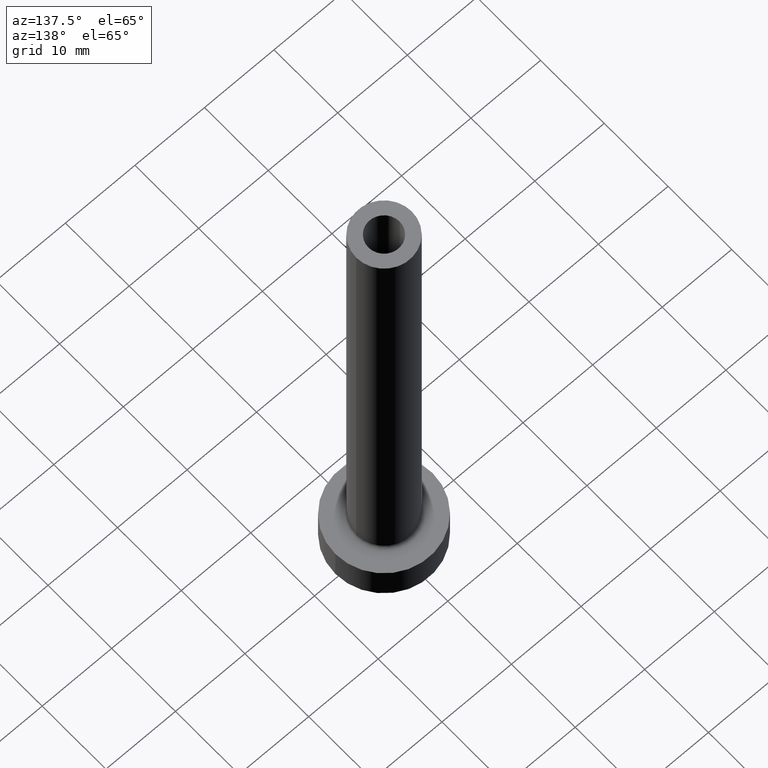
[diagram: clean part render]
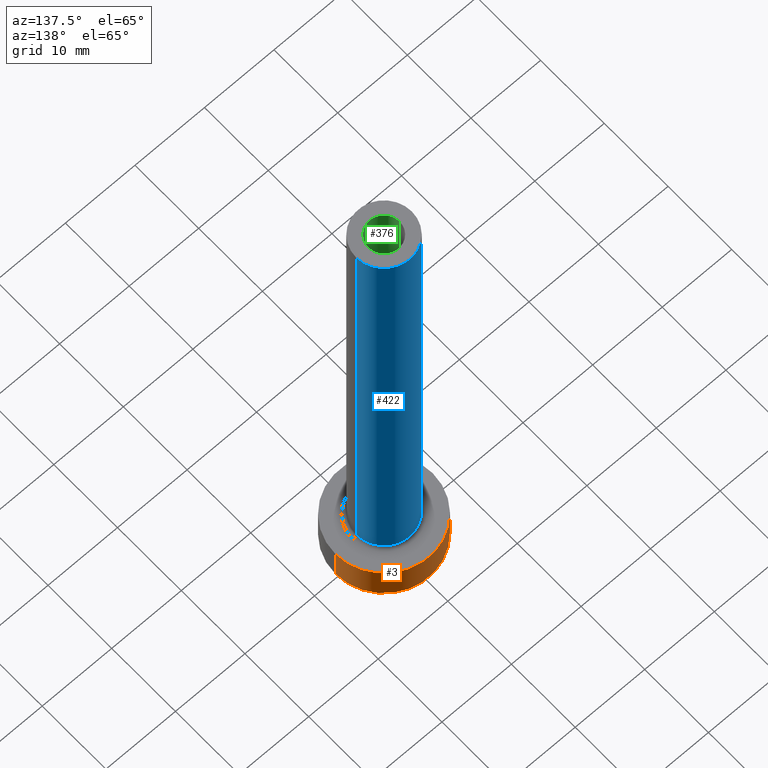
[diagram: same view with three faces highlighted in distinct colors, each labeled with its STEP entity id]
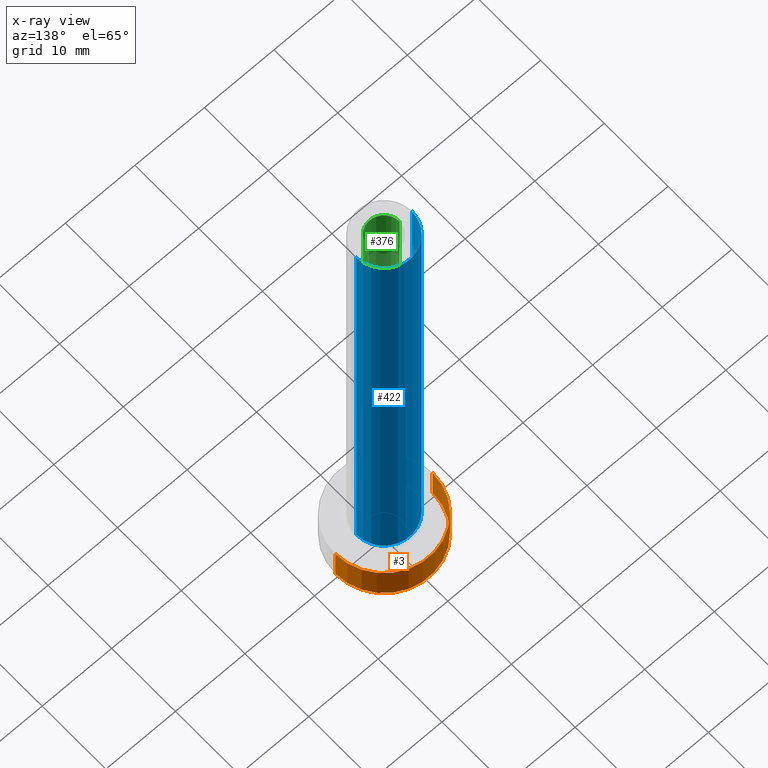
[diagram: x-ray of the same camera — body ghosted, the three highlighted faces saturated]
A machine part, auxiliary view with three faces highlighted in distinct colors.
The next image is the same camera in x-ray (body ghosted, the three faces saturated) — at least one of them is partly hidden behind the body in this view.
Their STEP definitions:

[orange] entity #3 — the highlighted cylindrical surface (partial cylindrical patch) has radius 7 mm, axis along (-0, -0, -1).
#3 = ADVANCED_FACE ( 'NONE', ( #166 ), #420, .T. ) ;
#22 = VERTEX_POINT ( 'NONE', #377 ) ;
#27 = DIRECTION ( 'NONE',  ( -1.000000000000000000, 0.000000000000000000, 0.000000000000000000 ) ) ;
#54 = ORIENTED_EDGE ( 'NONE', *, *, #195, .F. ) ;
#59 = CARTESIAN_POINT ( 'NONE',  ( 0.000000000000000000, 0.000000000000000000, 5.000000000000000000 ) ) ;
#61 = VECTOR ( 'NONE', #410, 1000.000000000000000 ) ;
#62 = VECTOR ( 'NONE', #331, 1000.000000000000000 ) ;
#67 = DIRECTION ( 'NONE',  ( 1.000000000000000000, 0.000000000000000000, 0.000000000000000000 ) ) ;
#92 = CARTESIAN_POINT ( 'NONE',  ( 7.000000000000000000, 8.572527594031473190E-16, 5.000000000000000000 ) ) ;
#98 = EDGE_CURVE ( 'NONE', #402, #225, #196, .T. ) ;
#102 = LINE ( 'NONE', #254, #62 ) ;
#130 = AXIS2_PLACEMENT_3D ( 'NONE', #59, #133, #200 ) ;
#133 = DIRECTION ( 'NONE',  ( 0.000000000000000000, 0.000000000000000000, 1.000000000000000000 ) ) ;
#147 = CIRCLE ( 'NONE', #130, 7.000000000000000000 ) ;
#166 = FACE_OUTER_BOUND ( 'NONE', #193, .T. ) ;
#193 = EDGE_LOOP ( 'NONE', ( #417, #332, #290, #54 ) ) ;
#195 = EDGE_CURVE ( 'NONE', #22, #225, #444, .T. ) ;
#196 = CIRCLE ( 'NONE', #214, 7.000000000000000000 ) ;
#200 = DIRECTION ( 'NONE',  ( 1.000000000000000000, 0.000000000000000000, 0.000000000000000000 ) ) ;
#207 = CARTESIAN_POINT ( 'NONE',  ( 0.000000000000000000, 0.000000000000000000, 5.000000000000000000 ) ) ;
#214 = AXIS2_PLACEMENT_3D ( 'NONE', #276, #421, #67 ) ;
#225 = VERTEX_POINT ( 'NONE', #260 ) ;
#239 = AXIS2_PLACEMENT_3D ( 'NONE', #207, #350, #27 ) ;
#254 = CARTESIAN_POINT ( 'NONE',  ( 7.000000000000000000, 8.572527594031473190E-16, 5.000000000000000000 ) ) ;
#260 = CARTESIAN_POINT ( 'NONE',  ( -7.000000000000000000, 0.000000000000000000, 0.000000000000000000 ) ) ;
#276 = CARTESIAN_POINT ( 'NONE',  ( 0.000000000000000000, 0.000000000000000000, 0.000000000000000000 ) ) ;
#290 = ORIENTED_EDGE ( 'NONE', *, *, #98, .T. ) ;
#331 = DIRECTION ( 'NONE',  ( -0.000000000000000000, -0.000000000000000000, -1.000000000000000000 ) ) ;
#332 = ORIENTED_EDGE ( 'NONE', *, *, #341, .T. ) ;
#341 = EDGE_CURVE ( 'NONE', #442, #402, #102, .T. ) ;
#350 = DIRECTION ( 'NONE',  ( -0.000000000000000000, -0.000000000000000000, -1.000000000000000000 ) ) ;
#377 = CARTESIAN_POINT ( 'NONE',  ( -7.000000000000000000, 0.000000000000000000, 5.000000000000000000 ) ) ;
#378 = CARTESIAN_POINT ( 'NONE',  ( -7.000000000000000000, 0.000000000000000000, 5.000000000000000000 ) ) ;
#381 = CARTESIAN_POINT ( 'NONE',  ( 7.000000000000000000, 8.572527594031473190E-16, 0.000000000000000000 ) ) ;
#402 = VERTEX_POINT ( 'NONE', #381 ) ;
#410 = DIRECTION ( 'NONE',  ( -0.000000000000000000, -0.000000000000000000, -1.000000000000000000 ) ) ;
#413 = EDGE_CURVE ( 'NONE', #442, #22, #147, .T. ) ;
#417 = ORIENTED_EDGE ( 'NONE', *, *, #413, .F. ) ;
#420 = CYLINDRICAL_SURFACE ( 'NONE', #239, 7.000000000000000000 ) ;
#421 = DIRECTION ( 'NONE',  ( 0.000000000000000000, 0.000000000000000000, 1.000000000000000000 ) ) ;
#442 = VERTEX_POINT ( 'NONE', #92 ) ;
#444 = LINE ( 'NONE', #378, #61 ) ;

[blue] entity #422 — the highlighted cylindrical surface (partial cylindrical patch) has radius 4 mm, axis along (-0, -0, -1).
#5 = EDGE_CURVE ( 'NONE', #383, #303, #319, .T. ) ;
#26 = CYLINDRICAL_SURFACE ( 'NONE', #437, 4.000000000000000000 ) ;
#52 = AXIS2_PLACEMENT_3D ( 'NONE', #97, #339, #86 ) ;
#69 = ORIENTED_EDGE ( 'NONE', *, *, #329, .F. ) ;
#70 = EDGE_CURVE ( 'NONE', #445, #302, #261, .T. ) ;
#72 = AXIS2_PLACEMENT_3D ( 'NONE', #164, #306, #122 ) ;
#74 = VECTOR ( 'NONE', #380, 1000.000000000000000 ) ;
#78 = LINE ( 'NONE', #109, #74 ) ;
#86 = DIRECTION ( 'NONE',  ( 1.000000000000000000, 0.000000000000000000, 0.000000000000000000 ) ) ;
#97 = CARTESIAN_POINT ( 'NONE',  ( 0.000000000000000000, 0.000000000000000000, 5.500000000000005329 ) ) ;
#109 = CARTESIAN_POINT ( 'NONE',  ( 4.000000000000000000, 4.898587196589412829E-16, 75.00000000000001421 ) ) ;
#122 = DIRECTION ( 'NONE',  ( 1.000000000000000000, 0.000000000000000000, 0.000000000000000000 ) ) ;
#141 = VECTOR ( 'NONE', #396, 1000.000000000000000 ) ;
#153 = ORIENTED_EDGE ( 'NONE', *, *, #257, .T. ) ;
#164 = CARTESIAN_POINT ( 'NONE',  ( 0.000000000000000000, 0.000000000000000000, 75.00000000000001421 ) ) ;
#188 = LINE ( 'NONE', #298, #141 ) ;
#203 = DIRECTION ( 'NONE',  ( -0.000000000000000000, -0.000000000000000000, -1.000000000000000000 ) ) ;
#210 = CARTESIAN_POINT ( 'NONE',  ( 0.000000000000000000, 0.000000000000000000, 75.00000000000001421 ) ) ;
#215 = EDGE_LOOP ( 'NONE', ( #253, #153, #342, #69 ) ) ;
#253 = ORIENTED_EDGE ( 'NONE', *, *, #70, .F. ) ;
#257 = EDGE_CURVE ( 'NONE', #445, #383, #78, .T. ) ;
#261 = CIRCLE ( 'NONE', #72, 4.000000000000000000 ) ;
#298 = CARTESIAN_POINT ( 'NONE',  ( -4.000000000000000000, 0.000000000000000000, 75.00000000000001421 ) ) ;
#302 = VERTEX_POINT ( 'NONE', #428 ) ;
#303 = VERTEX_POINT ( 'NONE', #391 ) ;
#306 = DIRECTION ( 'NONE',  ( 0.000000000000000000, 0.000000000000000000, 1.000000000000000000 ) ) ;
#319 = CIRCLE ( 'NONE', #52, 4.000000000000000000 ) ;
#329 = EDGE_CURVE ( 'NONE', #302, #303, #188, .T. ) ;
#339 = DIRECTION ( 'NONE',  ( 0.000000000000000000, 0.000000000000000000, 1.000000000000000000 ) ) ;
#342 = ORIENTED_EDGE ( 'NONE', *, *, #5, .T. ) ;
#344 = FACE_OUTER_BOUND ( 'NONE', #215, .T. ) ;
#380 = DIRECTION ( 'NONE',  ( -0.000000000000000000, -0.000000000000000000, -1.000000000000000000 ) ) ;
#383 = VERTEX_POINT ( 'NONE', #435 ) ;
#385 = CARTESIAN_POINT ( 'NONE',  ( 4.000000000000000000, 4.898587196589412829E-16, 75.00000000000001421 ) ) ;
#391 = CARTESIAN_POINT ( 'NONE',  ( -4.000000000000000000, 0.000000000000000000, 5.500000000000005329 ) ) ;
#396 = DIRECTION ( 'NONE',  ( -0.000000000000000000, -0.000000000000000000, -1.000000000000000000 ) ) ;
#419 = DIRECTION ( 'NONE',  ( -1.000000000000000000, 0.000000000000000000, 0.000000000000000000 ) ) ;
#422 = ADVANCED_FACE ( 'NONE', ( #344 ), #26, .T. ) ;
#428 = CARTESIAN_POINT ( 'NONE',  ( -4.000000000000000000, 0.000000000000000000, 75.00000000000001421 ) ) ;
#435 = CARTESIAN_POINT ( 'NONE',  ( 4.000000000000000000, 4.898587196589412829E-16, 5.500000000000005329 ) ) ;
#437 = AXIS2_PLACEMENT_3D ( 'NONE', #210, #203, #419 ) ;
#445 = VERTEX_POINT ( 'NONE', #385 ) ;

[green] entity #376 — the highlighted cylindrical surface (edge-blend (fillet) strip) has radius 2.25 mm, axis along (0, 0, -1).
#1 = DIRECTION ( 'NONE',  ( -1.000000000000000000, 0.000000000000000000, 0.000000000000000000 ) ) ;
#8 = CARTESIAN_POINT ( 'NONE',  ( 0.000000000000000000, 0.000000000000000000, 75.00000000000001421 ) ) ;
#15 = CIRCLE ( 'NONE', #217, 2.250000000000000000 ) ;
#19 = DIRECTION ( 'NONE',  ( 1.000000000000000000, 0.000000000000000000, 0.000000000000000000 ) ) ;
#21 = VECTOR ( 'NONE', #453, 1000.000000000000000 ) ;
#39 = CARTESIAN_POINT ( 'NONE',  ( -2.250000000000000000, 0.000000000000000000, 75.00000000000001421 ) ) ;
#42 = VERTEX_POINT ( 'NONE', #39 ) ;
#43 = EDGE_CURVE ( 'NONE', #42, #103, #15, .T. ) ;
#44 = DIRECTION ( 'NONE',  ( 0.000000000000000000, 0.000000000000000000, 1.000000000000000000 ) ) ;
#60 = CARTESIAN_POINT ( 'NONE',  ( 2.250000000000000000, 2.755455298081543792E-16, 75.00000000000001421 ) ) ;
#68 = DIRECTION ( 'NONE',  ( 0.000000000000000000, 0.000000000000000000, -1.000000000000000000 ) ) ;
#103 = VERTEX_POINT ( 'NONE', #60 ) ;
#127 = ORIENTED_EDGE ( 'NONE', *, *, #173, .T. ) ;
#151 = ORIENTED_EDGE ( 'NONE', *, *, #160, .F. ) ;
#160 = EDGE_CURVE ( 'NONE', #273, #299, #177, .T. ) ;
#163 = EDGE_LOOP ( 'NONE', ( #411, #127, #151, #405 ) ) ;
#171 = LINE ( 'NONE', #289, #388 ) ;
#173 = EDGE_CURVE ( 'NONE', #103, #299, #328, .T. ) ;
#176 = FACE_OUTER_BOUND ( 'NONE', #163, .T. ) ;
#177 = CIRCLE ( 'NONE', #275, 2.250000000000000000 ) ;
#217 = AXIS2_PLACEMENT_3D ( 'NONE', #325, #44, #301 ) ;
#244 = CARTESIAN_POINT ( 'NONE',  ( 2.250000000000000000, 2.755455298081543792E-16, 30.00000000000001421 ) ) ;
#262 = CARTESIAN_POINT ( 'NONE',  ( 2.250000000000000000, 2.755455298081543792E-16, 75.00000000000001421 ) ) ;
#273 = VERTEX_POINT ( 'NONE', #384 ) ;
#275 = AXIS2_PLACEMENT_3D ( 'NONE', #452, #311, #19 ) ;
#288 = EDGE_CURVE ( 'NONE', #42, #273, #171, .T. ) ;
#289 = CARTESIAN_POINT ( 'NONE',  ( -2.250000000000000000, 0.000000000000000000, 75.00000000000001421 ) ) ;
#299 = VERTEX_POINT ( 'NONE', #244 ) ;
#301 = DIRECTION ( 'NONE',  ( 1.000000000000000000, 0.000000000000000000, 0.000000000000000000 ) ) ;
#309 = AXIS2_PLACEMENT_3D ( 'NONE', #8, #68, #1 ) ;
#311 = DIRECTION ( 'NONE',  ( 0.000000000000000000, 0.000000000000000000, 1.000000000000000000 ) ) ;
#320 = DIRECTION ( 'NONE',  ( 0.000000000000000000, 0.000000000000000000, -1.000000000000000000 ) ) ;
#325 = CARTESIAN_POINT ( 'NONE',  ( 0.000000000000000000, 0.000000000000000000, 75.00000000000001421 ) ) ;
#328 = LINE ( 'NONE', #262, #21 ) ;
#376 = ADVANCED_FACE ( 'NONE', ( #176 ), #394, .F. ) ;
#384 = CARTESIAN_POINT ( 'NONE',  ( -2.250000000000000000, 0.000000000000000000, 30.00000000000001421 ) ) ;
#388 = VECTOR ( 'NONE', #320, 1000.000000000000000 ) ;
#394 = CYLINDRICAL_SURFACE ( 'NONE', #309, 2.250000000000000000 ) ;
#405 = ORIENTED_EDGE ( 'NONE', *, *, #288, .F. ) ;
#411 = ORIENTED_EDGE ( 'NONE', *, *, #43, .T. ) ;
#452 = CARTESIAN_POINT ( 'NONE',  ( 0.000000000000000000, 0.000000000000000000, 30.00000000000001421 ) ) ;
#453 = DIRECTION ( 'NONE',  ( 0.000000000000000000, 0.000000000000000000, -1.000000000000000000 ) ) ;